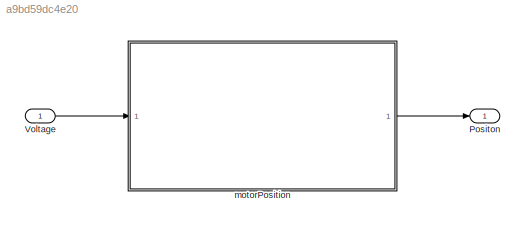
MODEL slx_a9bd59dc4e20
KIND model
CONFIG AbsTol = auto
CONFIG EnableMultiTasking = off
CONFIG FixedStep = auto
CONFIG MaxStep = auto
CONFIG MinStep = auto
CONFIG RelTol = 1e-3
CONFIG SampleTimeConstraint = Unconstrained
CONFIG Solver = VariableStepAuto
CONFIG SolverName = VariableStepAuto
CONFIG StartTime = 0.0
CONFIG StopTime = 10.0
BLOCK [Outport]  Positon
BLOCK [Inport] Voltage
BLOCK [ModelReference] motorPosition
  ModelNameDialog = motorPosition
  ModelReferenceVersion = 1.14
  Ports = [1, 1]
LINE Voltage:1 -> motorPosition:1
LINE motorPosition:1 ->  Positon:1
